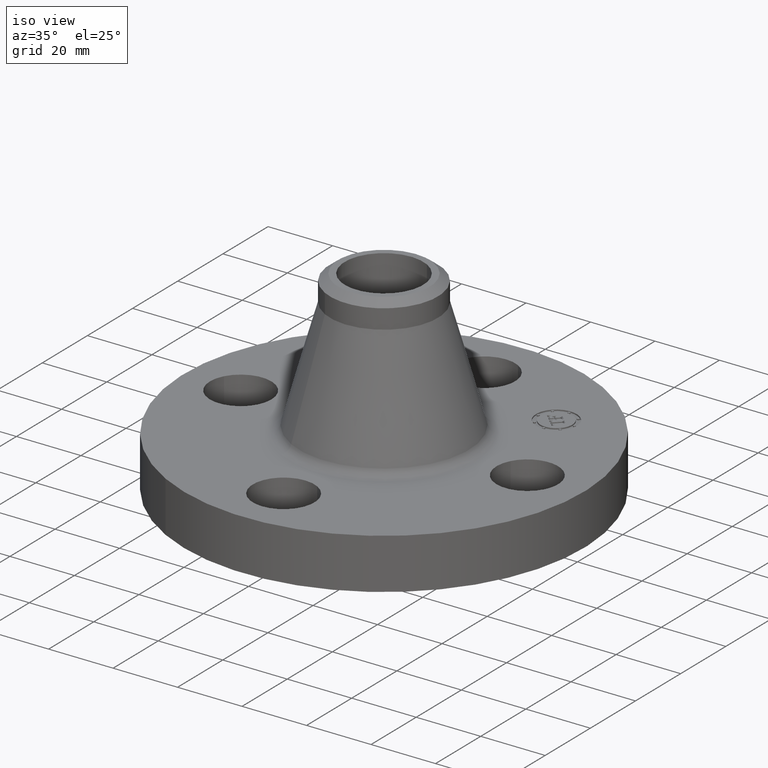
[diagram: clean part render]
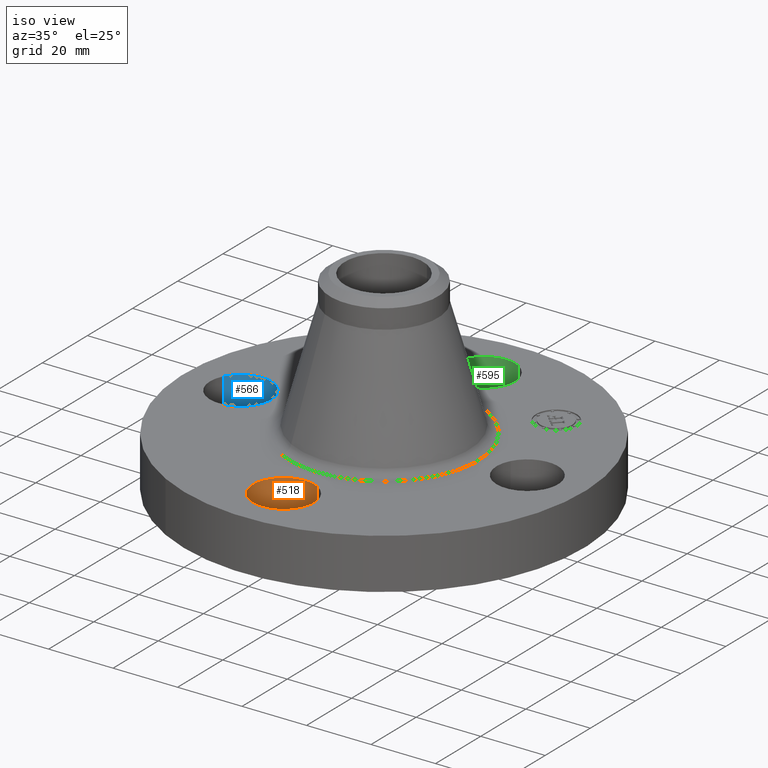
[diagram: same view with three faces highlighted in distinct colors, each labeled with its STEP entity id]
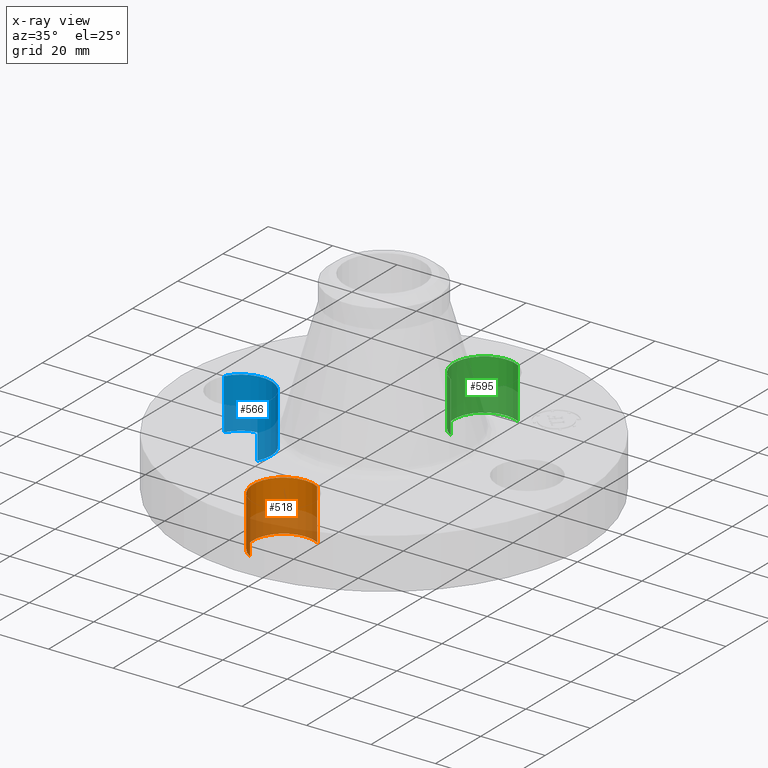
[diagram: x-ray of the same camera — body ghosted, the three highlighted faces saturated]
A machine part, iso view with three faces highlighted in distinct colors.
The next image is the same camera in x-ray (body ghosted, the three faces saturated) — at least one of them is partly hidden behind the body in this view.
Their STEP definitions:

[orange] entity #518 — the highlighted cylindrical surface (partial cylindrical patch) has radius 9.525 mm, axis along (0, -0, -1).
#180=AXIS2_PLACEMENT_3D('Circle Axis2P3D',#178,#179,$) ;
#278=AXIS2_PLACEMENT_3D('Circle Axis2P3D',#276,#277,$) ;
#510=AXIS2_PLACEMENT_3D('Cylinder Axis2P3D',#507,#508,#509) ;
#173=CARTESIAN_POINT('Vertex',(0.179784576973,-1.42090653929,0.)) ;
#175=CARTESIAN_POINT('Vertex',(-0.179784576973,-2.07909346076,0.)) ;
#178=CARTESIAN_POINT('Axis2P3D Location',(1.28118688012E-011,-1.75000000003,0.)) ;
#276=CARTESIAN_POINT('Axis2P3D Location',(-3.49676543189E-017,-1.75000000003,0.620000000002)) ;
#280=CARTESIAN_POINT('Vertex',(-0.179784576973,-2.07909346072,0.620000000002)) ;
#282=CARTESIAN_POINT('Vertex',(0.179784576977,-1.4209065393,0.619999999987)) ;
#483=CARTESIAN_POINT('Line Origine',(0.179784576977,-1.4209065393,0.310000000001)) ;
#488=CARTESIAN_POINT('Line Origine',(-0.179784576977,-2.07909346072,0.310000000001)) ;
#507=CARTESIAN_POINT('Axis2P3D Location',(-1.72584639625E-016,-1.75000000001,0.616062992128)) ;
#179=DIRECTION('Axis2P3D Direction',(0.,0.,-0.0393700787402)) ;
#277=DIRECTION('Axis2P3D Direction',(0.,0.,-0.0393700787402)) ;
#484=DIRECTION('Vector Direction',(0.,0.,-0.0393700787402)) ;
#489=DIRECTION('Vector Direction',(0.,0.,-0.0393700787402)) ;
#508=DIRECTION('Axis2P3D Direction',(0.,-0.,-0.0393700787402)) ;
#509=DIRECTION('Axis2P3D XDirection',(-0.0188750212049,-0.0345504945626,0.)) ;
#485=VECTOR('Line Direction',#484,0.0393700787402) ;
#490=VECTOR('Line Direction',#489,0.0393700787402) ;
#513=ORIENTED_EDGE('',*,*,#492,.F.) ;
#514=ORIENTED_EDGE('',*,*,#182,.T.) ;
#515=ORIENTED_EDGE('',*,*,#487,.T.) ;
#516=ORIENTED_EDGE('',*,*,#284,.F.) ;
#518=ADVANCED_FACE('PartBody',(#517),#511,.F.) ;
#181=CIRCLE('generated circle',#180,0.375000000021) ;
#279=CIRCLE('generated circle',#278,0.374999999988) ;
#511=CYLINDRICAL_SURFACE('generated cylinder',#510,0.375000000001) ;
#182=EDGE_CURVE('',#176,#174,#181,.T.) ;
#284=EDGE_CURVE('',#281,#283,#279,.T.) ;
#487=EDGE_CURVE('',#174,#283,#486,.F.) ;
#492=EDGE_CURVE('',#176,#281,#491,.F.) ;
#512=EDGE_LOOP('',(#513,#514,#515,#516)) ;
#517=FACE_OUTER_BOUND('',#512,.T.) ;
#486=LINE('Line',#483,#485) ;
#491=LINE('Line',#488,#490) ;
#174=VERTEX_POINT('',#173) ;
#176=VERTEX_POINT('',#175) ;
#281=VERTEX_POINT('',#280) ;
#283=VERTEX_POINT('',#282) ;

[blue] entity #566 — the highlighted cylindrical surface (partial cylindrical patch) has radius 9.525 mm, axis along (0, 0, -1).
#198=AXIS2_PLACEMENT_3D('Circle Axis2P3D',#196,#197,$) ;
#296=AXIS2_PLACEMENT_3D('Circle Axis2P3D',#294,#295,$) ;
#558=AXIS2_PLACEMENT_3D('Cylinder Axis2P3D',#555,#556,#557) ;
#191=CARTESIAN_POINT('Vertex',(-1.42090653927,-0.179784576988,0.)) ;
#193=CARTESIAN_POINT('Vertex',(-2.07909346074,0.179784576959,0.)) ;
#196=CARTESIAN_POINT('Axis2P3D Location',(-1.75000000001,-2.74782821169E-011,0.)) ;
#294=CARTESIAN_POINT('Axis2P3D Location',(-1.75000000001,5.40152349795E-012,0.620000000002)) ;
#298=CARTESIAN_POINT('Vertex',(-2.07909346074,0.179784576991,0.620000000002)) ;
#300=CARTESIAN_POINT('Vertex',(-1.4209065393,-0.179784576978,0.619999999987)) ;
#531=CARTESIAN_POINT('Line Origine',(-1.4209065393,-0.179784576978,0.310000000001)) ;
#536=CARTESIAN_POINT('Line Origine',(-2.07909346072,0.179784576978,0.310000000001)) ;
#555=CARTESIAN_POINT('Axis2P3D Location',(-1.75000000001,-2.14313189852E-016,0.616062992128)) ;
#197=DIRECTION('Axis2P3D Direction',(0.,0.,-0.0393700787402)) ;
#295=DIRECTION('Axis2P3D Direction',(0.,0.,-0.0393700787402)) ;
#532=DIRECTION('Vector Direction',(0.,0.,-0.0393700787402)) ;
#537=DIRECTION('Vector Direction',(0.,0.,-0.0393700787402)) ;
#556=DIRECTION('Axis2P3D Direction',(0.,0.,-0.0393700787402)) ;
#557=DIRECTION('Axis2P3D XDirection',(-0.0345504945626,0.0188750212049,0.)) ;
#533=VECTOR('Line Direction',#532,0.0393700787402) ;
#538=VECTOR('Line Direction',#537,0.0393700787402) ;
#561=ORIENTED_EDGE('',*,*,#540,.F.) ;
#562=ORIENTED_EDGE('',*,*,#200,.T.) ;
#563=ORIENTED_EDGE('',*,*,#535,.T.) ;
#564=ORIENTED_EDGE('',*,*,#302,.F.) ;
#566=ADVANCED_FACE('PartBody',(#565),#559,.F.) ;
#199=CIRCLE('generated circle',#198,0.375000000021) ;
#297=CIRCLE('generated circle',#296,0.375000000021) ;
#559=CYLINDRICAL_SURFACE('generated cylinder',#558,0.375000000002) ;
#200=EDGE_CURVE('',#194,#192,#199,.T.) ;
#302=EDGE_CURVE('',#299,#301,#297,.T.) ;
#535=EDGE_CURVE('',#192,#301,#534,.F.) ;
#540=EDGE_CURVE('',#194,#299,#539,.F.) ;
#560=EDGE_LOOP('',(#561,#562,#563,#564)) ;
#565=FACE_OUTER_BOUND('',#560,.T.) ;
#534=LINE('Line',#531,#533) ;
#539=LINE('Line',#536,#538) ;
#192=VERTEX_POINT('',#191) ;
#194=VERTEX_POINT('',#193) ;
#299=VERTEX_POINT('',#298) ;
#301=VERTEX_POINT('',#300) ;

[green] entity #595 — the highlighted cylindrical surface (partial cylindrical patch) has radius 9.525 mm, axis along (0, 0, -1).
#207=AXIS2_PLACEMENT_3D('Circle Axis2P3D',#205,#206,$) ;
#323=AXIS2_PLACEMENT_3D('Circle Axis2P3D',#321,#322,$) ;
#577=AXIS2_PLACEMENT_3D('Cylinder Axis2P3D',#574,#575,#576) ;
#205=CARTESIAN_POINT('Axis2P3D Location',(-3.49676543189E-017,1.75000000003,0.)) ;
#209=CARTESIAN_POINT('Vertex',(-0.179784576973,1.42090653933,0.)) ;
#211=CARTESIAN_POINT('Vertex',(0.179784576973,2.07909346073,0.)) ;
#316=CARTESIAN_POINT('Vertex',(0.179784576973,2.07909346069,0.620000000002)) ;
#318=CARTESIAN_POINT('Vertex',(-0.179784576977,1.4209065393,0.619999999987)) ;
#321=CARTESIAN_POINT('Axis2P3D Location',(-3.49676543189E-017,1.74999999999,0.620000000002)) ;
#574=CARTESIAN_POINT('Axis2P3D Location',(-3.21469784777E-016,1.75000000001,0.616062992128)) ;
#579=CARTESIAN_POINT('Line Origine',(-0.179784576977,1.4209065393,0.310000000001)) ;
#584=CARTESIAN_POINT('Line Origine',(0.179784576977,2.07909346072,0.310000000001)) ;
#206=DIRECTION('Axis2P3D Direction',(0.,0.,-0.0393700787402)) ;
#322=DIRECTION('Axis2P3D Direction',(0.,0.,-0.0393700787402)) ;
#575=DIRECTION('Axis2P3D Direction',(0.,0.,-0.0393700787402)) ;
#576=DIRECTION('Axis2P3D XDirection',(-0.0188750212049,-0.0345504945626,0.)) ;
#580=DIRECTION('Vector Direction',(0.,0.,-0.0393700787402)) ;
#585=DIRECTION('Vector Direction',(0.,0.,-0.0393700787402)) ;
#581=VECTOR('Line Direction',#580,0.0393700787402) ;
#586=VECTOR('Line Direction',#585,0.0393700787402) ;
#590=ORIENTED_EDGE('',*,*,#583,.F.) ;
#591=ORIENTED_EDGE('',*,*,#213,.T.) ;
#592=ORIENTED_EDGE('',*,*,#588,.T.) ;
#593=ORIENTED_EDGE('',*,*,#325,.F.) ;
#595=ADVANCED_FACE('PartBody',(#594),#578,.F.) ;
#208=CIRCLE('generated circle',#207,0.374999999988) ;
#324=CIRCLE('generated circle',#323,0.374999999988) ;
#578=CYLINDRICAL_SURFACE('generated cylinder',#577,0.375000000001) ;
#213=EDGE_CURVE('',#210,#212,#208,.T.) ;
#325=EDGE_CURVE('',#319,#317,#324,.T.) ;
#583=EDGE_CURVE('',#210,#319,#582,.F.) ;
#588=EDGE_CURVE('',#212,#317,#587,.F.) ;
#589=EDGE_LOOP('',(#590,#591,#592,#593)) ;
#594=FACE_OUTER_BOUND('',#589,.T.) ;
#582=LINE('Line',#579,#581) ;
#587=LINE('Line',#584,#586) ;
#210=VERTEX_POINT('',#209) ;
#212=VERTEX_POINT('',#211) ;
#317=VERTEX_POINT('',#316) ;
#319=VERTEX_POINT('',#318) ;